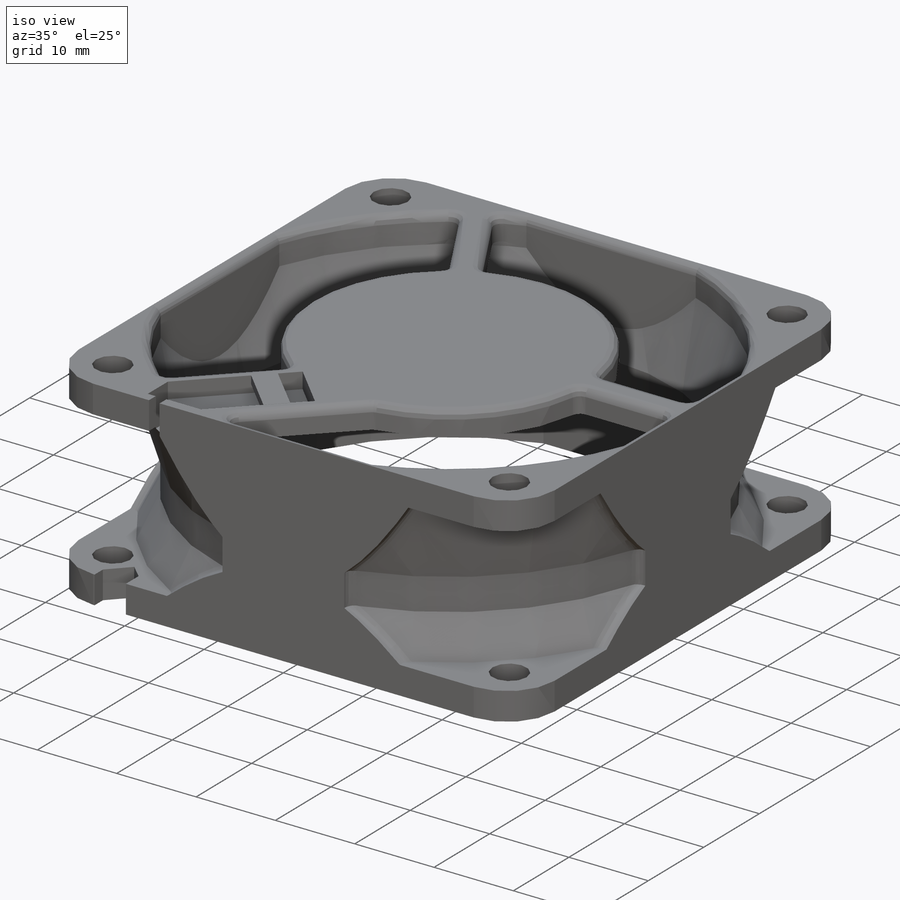
[diagram: iso view]
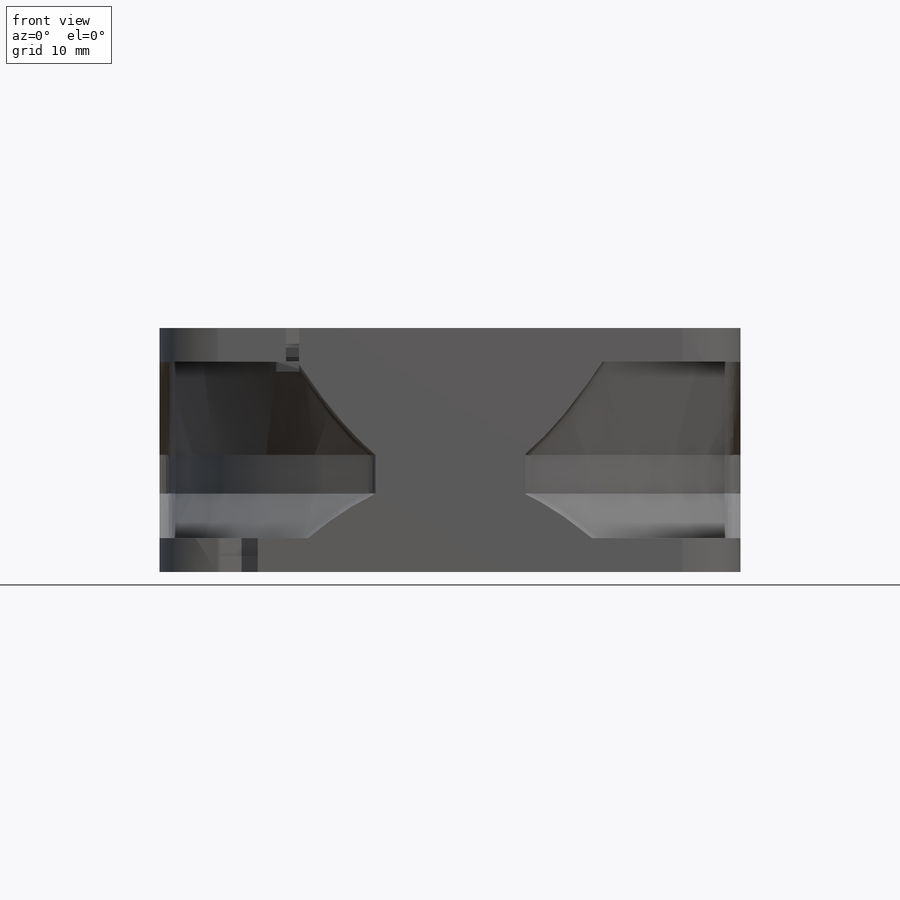
[diagram: front view]
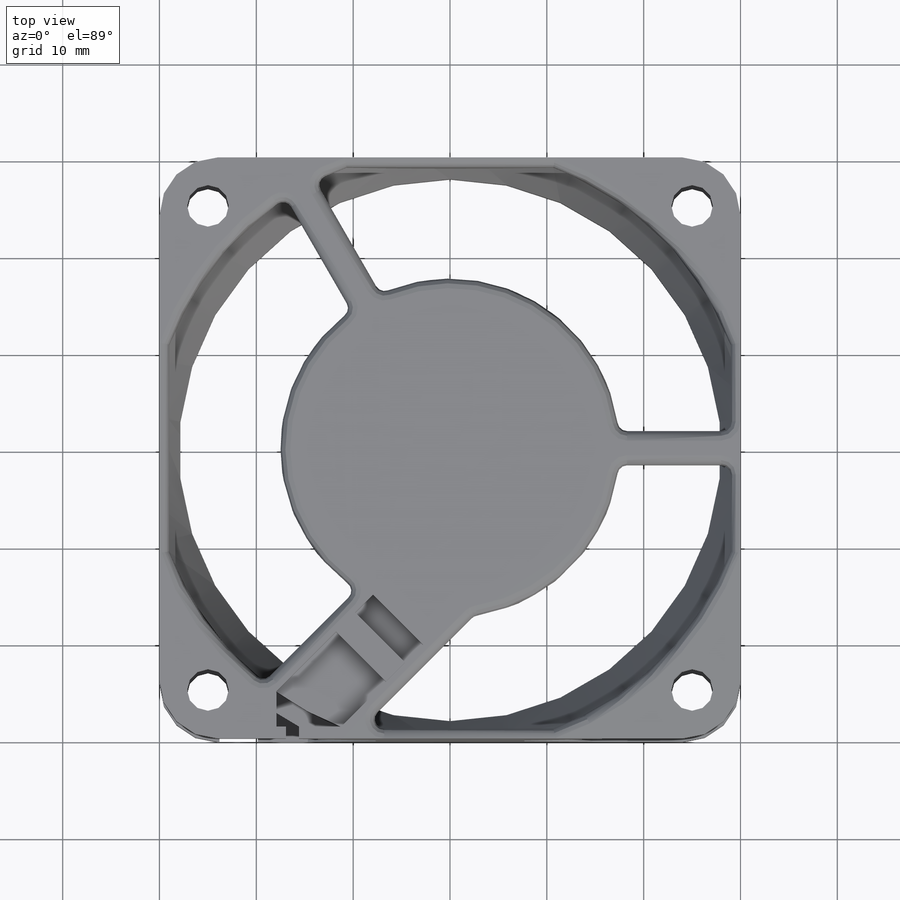
[diagram: top view]
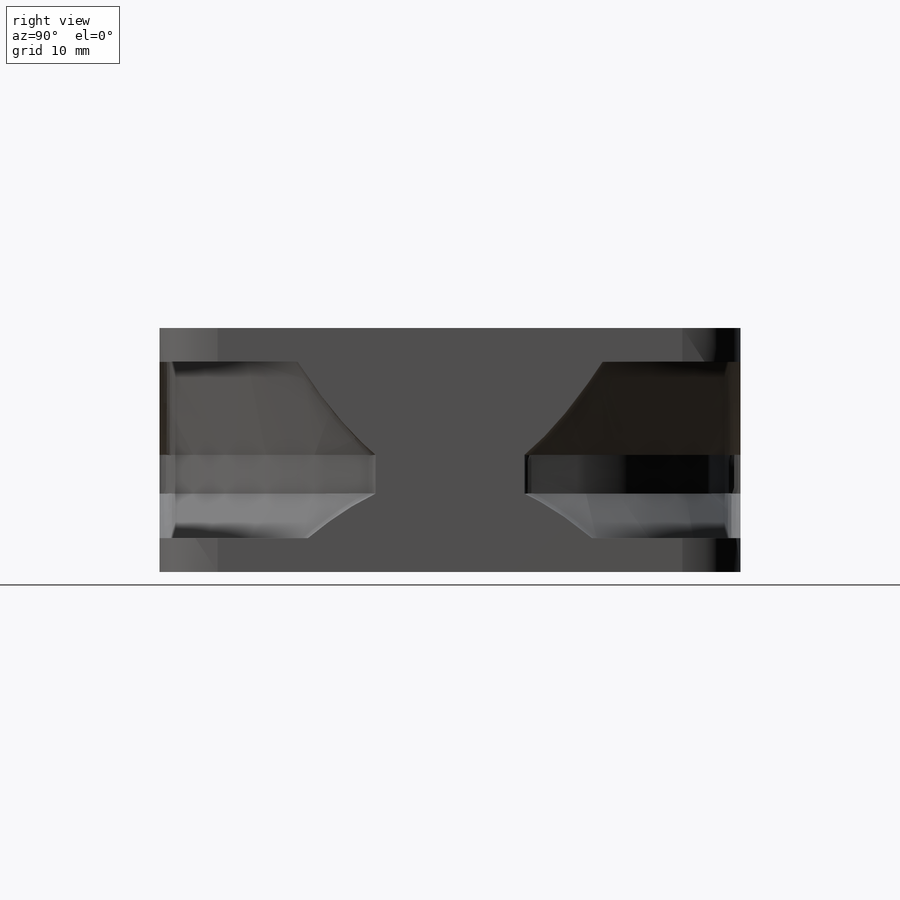
[diagram: right view]
SOLIDWORKS PART (.sldprt)
format: sldprt  version: not decoded by parser v0  size: 2,546,176 bytes
history: native  units: mm
features: sketch x13, extrude x6, cut_extrude x6, mirror x4, fillet x4, plane x3, boolean_combine x3, material x1 (+12 scaffold rows collapsed)
feature tree (52):
  scaffold x12  (default folders/planes/origin — collapsed)
  material  "Materiale <non specificato>"
  plane  "Frontale"
  plane  "Superiore"
  plane  "Destro"
  sketch  "Schizzo1"  dims[c1.D1=65.0mm c1.D2=60.0mm c1.D3=60.0mm c1.D4=66.0mm c1.D5=9.6mm c1.D6=4.0mm c1.D7=4.6mm c1.D8=3.0mm c2.D2=60.0mm c2.D3=2.5mm c2.D8=9.1mm c2.D9=3.0mm c2.D1=360.0deg c3.D3=2.0mm c3.D4=1.0mm]
  sketch  "Schizzo2"  dims[D1=58.0mm]
  extrude  "Estrusione-Estrusione1"  Depth=9.1mm
  boolean_combine  "Abbina1"
  sketch  "Schizzo3"  dims[D1=60.0mm]
  extrude  "Estrusione-Estrusione2"  Depth=3.5mm
  mirror  "Specchia1"
  sketch  "Schizzo4"
  extrude  "Estrusione-Estrusione3"  Depth=1mm
  sketch  "Schizzo8"
  extrude  "Estrusione-Estrusione5"  Depth=1mm
  boolean_combine  "Specchia2"
  boolean_combine  "Specchia3"
  sketch  "Schizzo9"  dims[c1.D1=~29.810868mm c1.D2=1.0mm c1.D3=~23.09436mm c1.D4=30.0mm c1.D5=~36.90564mm c1.D6=59.0mm c2.D2=1.0mm c2.D3=~23.09436mm c2.D4=1.0mm c2.D5=~23.09436mm c2.D6=30.0mm c2.D7=~36.90564mm c2.D8=59.0mm c3.D4=1.0mm]
  cut_extrude  "Taglio-Estrusione2"  Depth=3.5mm
  sketch  "Schizzo10"
  cut_extrude  "Taglio-Estrusione3"  Depth=3.5mm
  fillet  "Raccordo1"  Radius=1mm
  fillet  "ModelUUID"  [1 undecoded]
  fillet  "UUID"  [1 undecoded]
  fillet  "ModelUUID"  [1 undecoded]
  sketch  "Schizzo11"  dims[c1.D1=35.0mm c1.D8=17.5mm c1.D2=5.0mm c1.D3=5.0mm c1.D4=3.5mm c1.D5=~13.405799mm c2.D5=118.0deg c2.D6=~4.629982mm c3.D6=~131.790165deg c3.D7=~13.661751mm c4.D7=~118.56189deg c4.D6=~11.523907mm c5.D6=~118.56189deg c5.D5=~13.503511mm c6.D5=120.0deg c6.D6=~11.489995mm c7.D6=120.0deg c7.D7=~5.24951mm c7.D2=5.0mm c7.D3=3.5mm c8.D7=1.75mm c8.D8=2.5mm c8.D2=~11.67647mm c9.D2=15.0deg c10.D2=3.5mm c10.D8=10.5mm c10.D9=~1.480536mm]
  extrude  "Estrusione-Estrusione7"  Depth=3mm
  mirror  "Raccordo2"
  mirror  "Raccordo3"
  mirror  "Raccordo4"
  sketch  "Schizzo12"  dims[D2=4.3mm D1=50.0mm]
  cut_extrude  "Taglio-Estrusione4"  [1 undecoded]
  sketch  "Schizzo13"  dims[c1.D3=~30.904618mm c1.D6=~30.904618mm c1.D1=7.3mm c1.D2=0.6mm c2.D3=5.12mm c2.D4=1.6mm c2.D5=~14.833515mm c3.D3=~14.132254mm c3.D4=~11.95922mm]
  cut_extrude  "Taglio-Estrusione5"  Depth=2mm
  sketch  "Schizzo15"  dims[D1=1.0mm D2=1.5mm D3=1.35mm]
  cut_extrude  "Taglio-Estrusione6"  Depth=4.5mm
  sketch  "Schizzo16"  dims[D1=2.6mm D2=2.8mm]
  extrude  "Estrusione-Estrusione8"  Depth=1mm
  sketch  "Schizzo17"  dims[c1.D5=4.3mm c1.D1=3.3mm c1.D2=2.3mm c1.D3=2.3mm c1.D4=1.5mm c2.D5=1.2mm]
  cut_extrude  "Taglio-Estrusione7"  [1 undecoded]
decode coverage: 21 of 36 modeling features carry decoded parameters
note: ~ marks probable driven/reference dimensions
note: 5 parameter values undecoded
summary: no parameter record found for 5 features
note: suppression state not decoded; provenance and decode notes live in map.json
